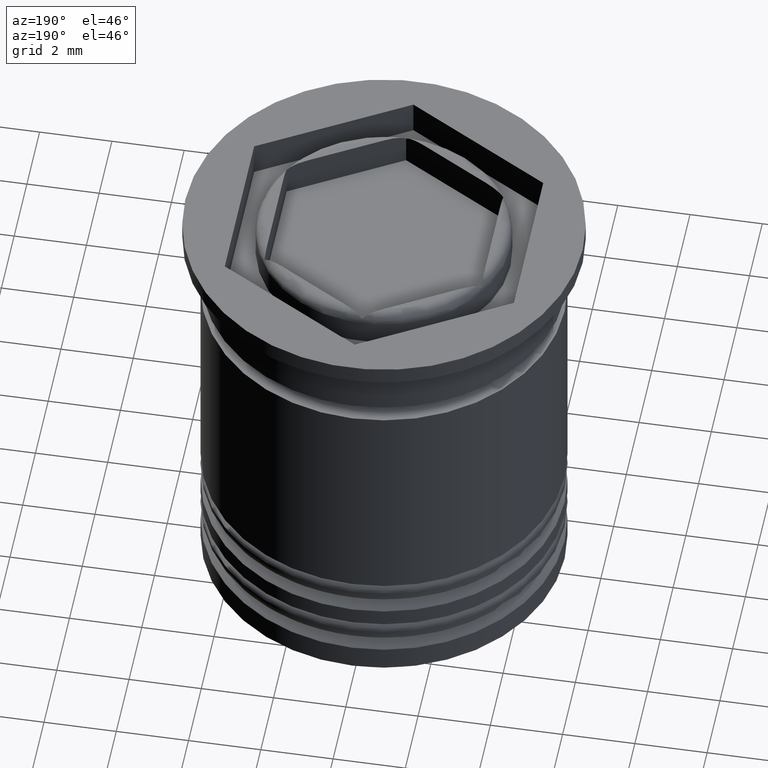
[diagram: clean part render]
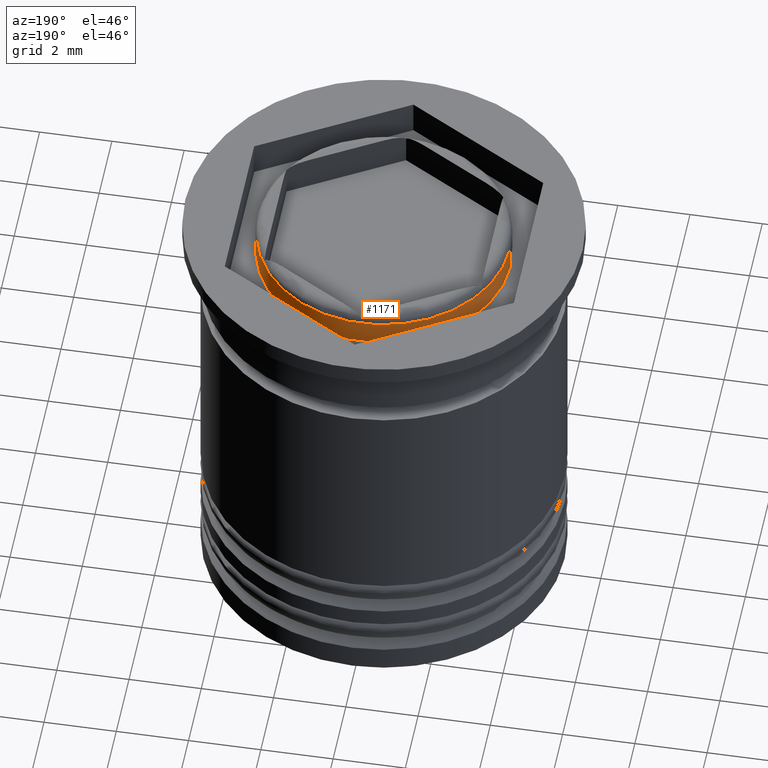
[diagram: same view with one face highlighted and labeled with its STEP entity id]
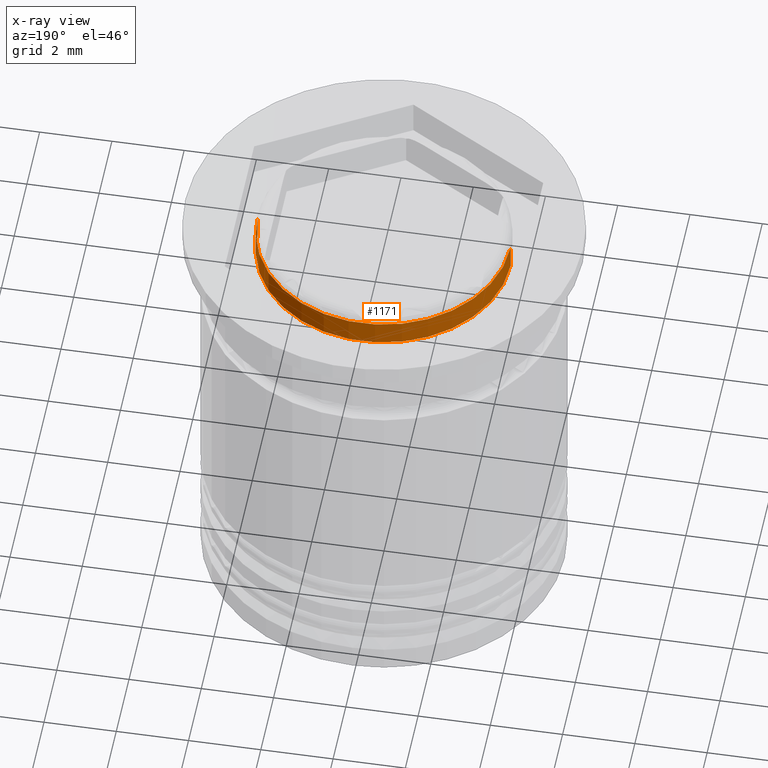
[diagram: x-ray of the same camera — body ghosted, the highlighted face saturated]
A machine part, auxiliary view. The second image highlights one B-rep face of the part: STEP entity #1171.
The next image is the same camera in x-ray: the body ghosted, the highlighted face saturated — about 0% of this face is hidden behind the body in this view.
In plain terms, the highlighted cylindrical surface (partial cylindrical patch) has radius 3.5 mm, axis along (-0, -0, -1).
Its self-contained STEP definition (entity closure, byte-faithful):
#26 = AXIS2_PLACEMENT_3D ( 'NONE', #1515, #710, #546 ) ;
#83 = VERTEX_POINT ( 'NONE', #340 ) ;
#267 = EDGE_LOOP ( 'NONE', ( #280, #1423, #670, #841 ) ) ;
#280 = ORIENTED_EDGE ( 'NONE', *, *, #789, .T. ) ;
#340 = CARTESIAN_POINT ( 'NONE',  ( -3.500000000000000444, 0.000000000000000000, -0.2999999999999999334 ) ) ;
#446 = DIRECTION ( 'NONE',  ( 1.000000000000000000, 0.000000000000000000, 0.000000000000000000 ) ) ;
#488 = VECTOR ( 'NONE', #1635, 1000.000000000000000 ) ;
#529 = CYLINDRICAL_SURFACE ( 'NONE', #1844, 3.500000000000000444 ) ;
#543 = VERTEX_POINT ( 'NONE', #1443 ) ;
#546 = DIRECTION ( 'NONE',  ( 1.000000000000000000, 0.000000000000000000, 0.000000000000000000 ) ) ;
#568 = DIRECTION ( 'NONE',  ( -0.000000000000000000, -0.000000000000000000, -1.000000000000000000 ) ) ;
#577 = CARTESIAN_POINT ( 'NONE',  ( 3.500000000000000444, 4.286263797015737088E-16, 9.899494936611665352 ) ) ;
#670 = ORIENTED_EDGE ( 'NONE', *, *, #1368, .T. ) ;
#706 = LINE ( 'NONE', #577, #1346 ) ;
#710 = DIRECTION ( 'NONE',  ( 0.000000000000000000, 0.000000000000000000, -1.000000000000000000 ) ) ;
#789 = EDGE_CURVE ( 'NONE', #83, #543, #1201, .T. ) ;
#826 = DIRECTION ( 'NONE',  ( -0.000000000000000000, -0.000000000000000000, -1.000000000000000000 ) ) ;
#841 = ORIENTED_EDGE ( 'NONE', *, *, #1076, .F. ) ;
#879 = CARTESIAN_POINT ( 'NONE',  ( -3.500000000000000444, 0.000000000000000000, -1.000000000000000000 ) ) ;
#882 = CARTESIAN_POINT ( 'NONE',  ( 3.500000000000000444, 4.286263797015737088E-16, -1.000000000000000000 ) ) ;
#991 = LINE ( 'NONE', #1320, #488 ) ;
#1076 = EDGE_CURVE ( 'NONE', #83, #1694, #991, .T. ) ;
#1150 = CARTESIAN_POINT ( 'NONE',  ( 0.000000000000000000, 0.000000000000000000, 9.899494936611665352 ) ) ;
#1171 = ADVANCED_FACE ( 'NONE', ( #1189 ), #529, .T. ) ;
#1189 = FACE_OUTER_BOUND ( 'NONE', #267, .T. ) ;
#1201 = CIRCLE ( 'NONE', #26, 3.500000000000000444 ) ;
#1260 = CARTESIAN_POINT ( 'NONE',  ( 0.000000000000000000, 0.000000000000000000, -1.000000000000000000 ) ) ;
#1320 = CARTESIAN_POINT ( 'NONE',  ( -3.500000000000000444, 0.000000000000000000, 9.899494936611665352 ) ) ;
#1341 = AXIS2_PLACEMENT_3D ( 'NONE', #1260, #2080, #446 ) ;
#1346 = VECTOR ( 'NONE', #568, 1000.000000000000000 ) ;
#1368 = EDGE_CURVE ( 'NONE', #2074, #1694, #2038, .T. ) ;
#1423 = ORIENTED_EDGE ( 'NONE', *, *, #2032, .T. ) ;
#1443 = CARTESIAN_POINT ( 'NONE',  ( 3.500000000000000444, 4.286263797015737088E-16, -0.2999999999999999334 ) ) ;
#1515 = CARTESIAN_POINT ( 'NONE',  ( 0.000000000000000000, 0.000000000000000000, -0.2999999999999999334 ) ) ;
#1635 = DIRECTION ( 'NONE',  ( -0.000000000000000000, -0.000000000000000000, -1.000000000000000000 ) ) ;
#1694 = VERTEX_POINT ( 'NONE', #879 ) ;
#1784 = DIRECTION ( 'NONE',  ( -1.000000000000000000, 0.000000000000000000, 0.000000000000000000 ) ) ;
#1844 = AXIS2_PLACEMENT_3D ( 'NONE', #1150, #826, #1784 ) ;
#2032 = EDGE_CURVE ( 'NONE', #543, #2074, #706, .T. ) ;
#2038 = CIRCLE ( 'NONE', #1341, 3.500000000000000444 ) ;
#2074 = VERTEX_POINT ( 'NONE', #882 ) ;
#2080 = DIRECTION ( 'NONE',  ( 0.000000000000000000, 0.000000000000000000, 1.000000000000000000 ) ) ;